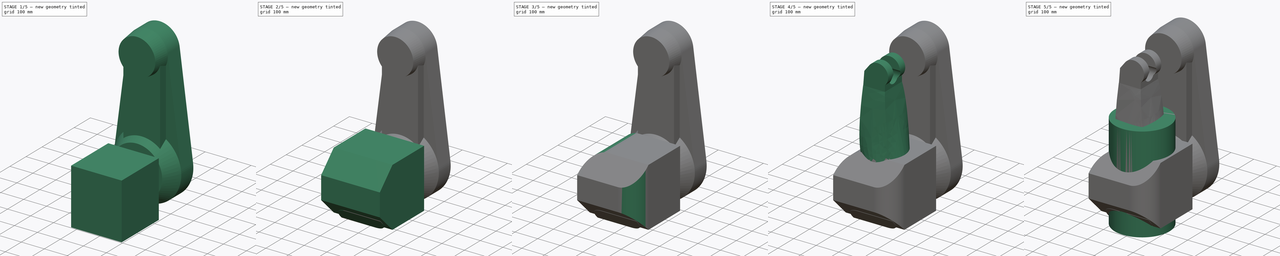
[diagram: build sequence overview — one tinted view per stage of 5, left to right]
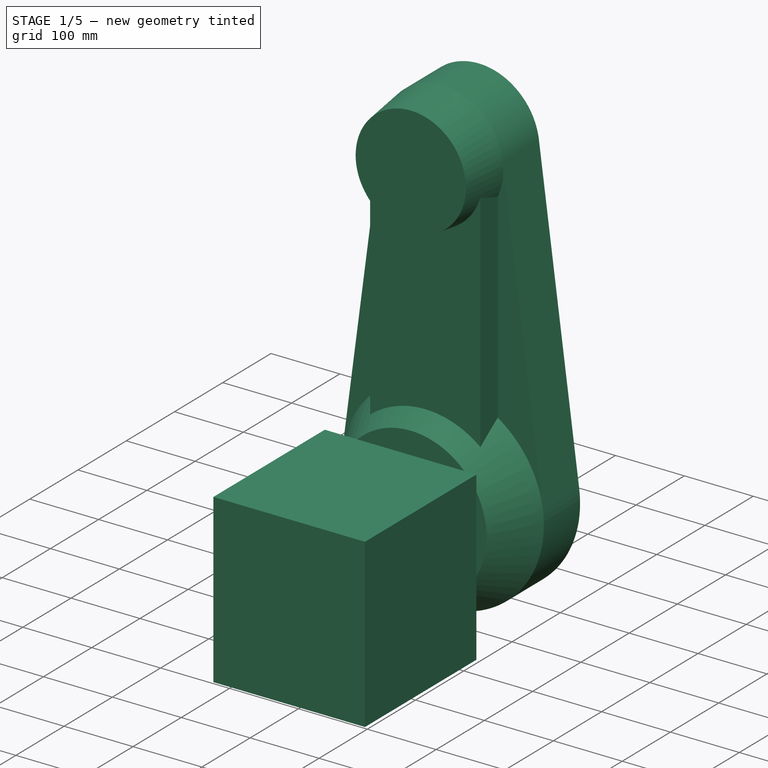
[diagram: stage 1 of 5 — iso view after this stage's code; geometry added in this stage tinted green]
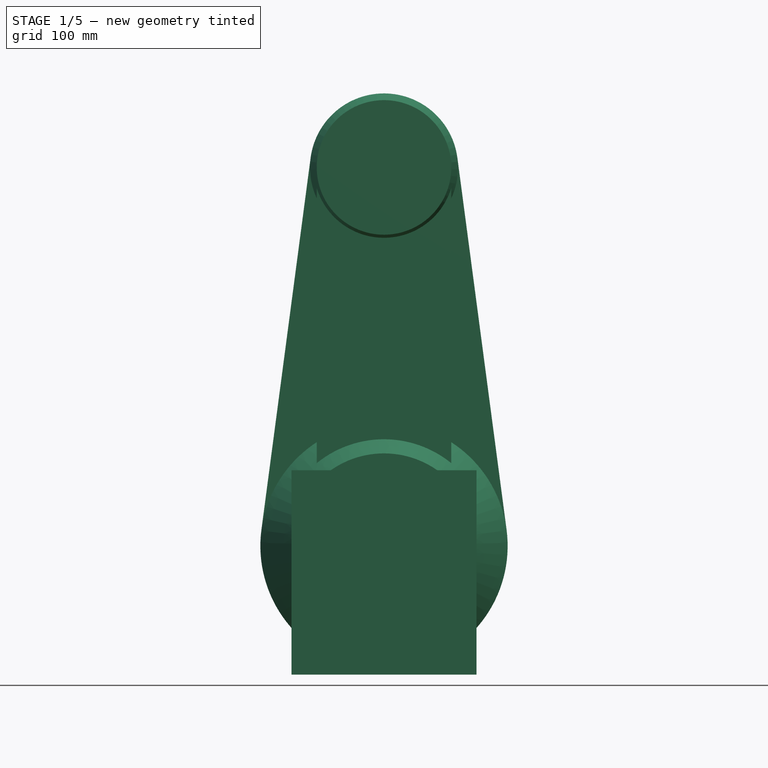
[diagram: stage 1 of 5 — front view after this stage's code; geometry added in this stage tinted green]
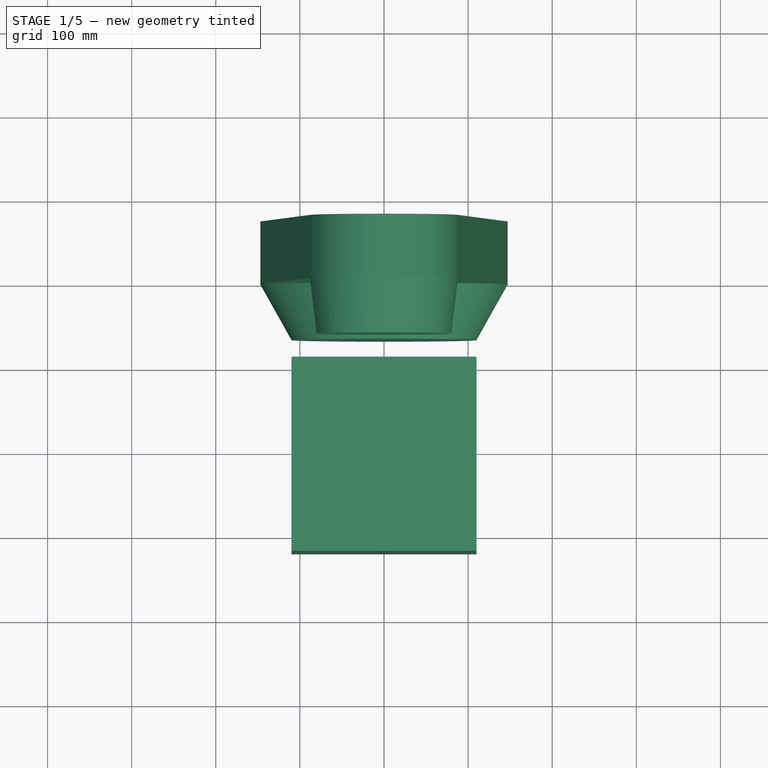
[diagram: stage 1 of 5 — top view after this stage's code; geometry added in this stage tinted green]
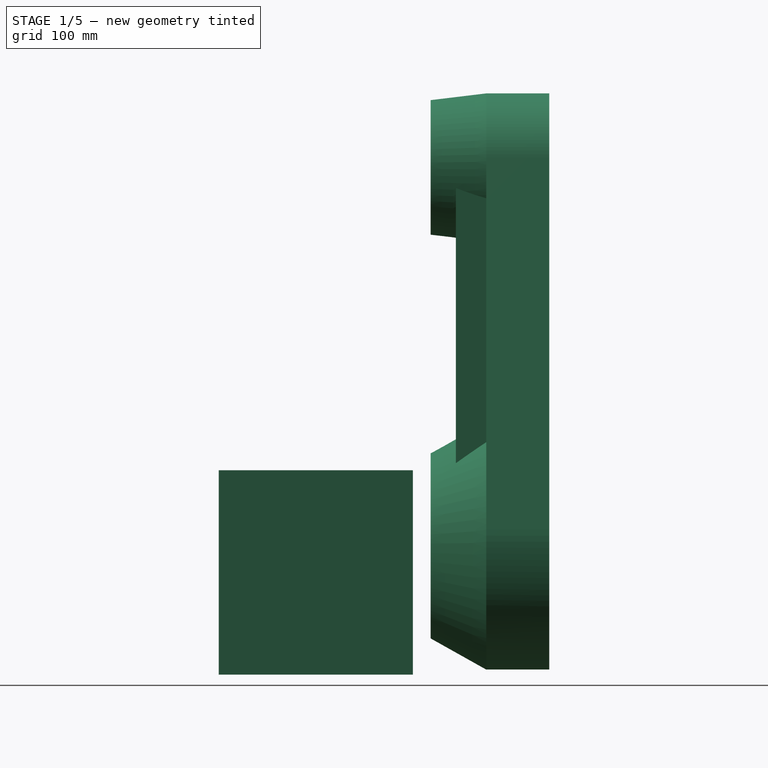
[diagram: stage 1 of 5 — right view after this stage's code; geometry added in this stage tinted green]
FCSTD DOCUMENT  (FreeCAD 1.0R38806 (Git))
Label: StaubliRX90
License: All rights reserved
LicenseURL: http://en.wikipedia.org/wiki/All_rights_reserved
objects: Sketcher::SketchObject×22, PartDesign::Pad×13, PartDesign::Body×7, PartDesign::Pocket×3, PartDesign::Chamfer×3, PartDesign::Plane×2, PartDesign::Fillet×2, PartDesign::Revolution×2, PartDesign::AdditiveLoft×1
note: 125 computed .brp shape members not serialized (recipe doc carries the construction recipe); baked Part::Feature solids carry a one-line shape summary decoded from their .brp

FEATURE [Sketcher::SketchObject] Sketch003
  ArcFitTolerance = 1e-06
  AttachmentOffset = pos=(0,0,-133) rot=(0,0,1;0rad)
  AttachmentSupport = -> [XZ_Plane001]
  FullyConstrained = true
  MakeInternals = false
  MapMode = 5
  Placement = pos=(0,133,-2.95e-14) rot=(1,0,0;1.5708rad)
  expr: .AttachmentOffset.Base.z = -424 + 150 + 141
  sketch-geometry (1):
    g0: Circle CenterX=0 CenterY=0 CenterZ=0 NormalX=0 NormalY=0 NormalZ=1 AngleXU=0 Radius=110
  constraints (2):
    c: Diameter(g0) = 220
    c: Coincident(g-1,g0)
FEATURE [Sketcher::SketchObject] Sketch004
  ArcFitTolerance = 1e-06
  AttachmentOffset = pos=(0,0,-274) rot=(0,0,1;0rad)
  AttachmentSupport = -> [XZ_Plane002]
  FullyConstrained = true
  MakeInternals = false
  MapMode = 5
  Placement = pos=(0,274,-6.08e-14) rot=(1,0,0;1.5708rad)
  expr: Constraints[6] = 294 mm / 2
  expr: Constraints[7] = 176 mm / 2
  sketch-geometry (4):
    g0: ArcOfCircle CenterX=0 CenterY=0 CenterZ=0 NormalX=0 NormalY=0 NormalZ=1 AngleXU=0 Radius=147 StartAngle=3.0101 EndAngle=6.41467
    g1: ArcOfCircle CenterX=0 CenterY=450 CenterZ=0 NormalX=0 NormalY=0 NormalZ=1 AngleXU=0 Radius=88 StartAngle=0.13149 EndAngle=3.0101
    g2: LineSegment StartX=-145.731 StartY=19.2733 StartZ=0 EndX=-87.2404 EndY=461.538 EndZ=0
    g3: LineSegment StartX=145.731 StartY=19.2733 StartZ=0 EndX=87.2404 EndY=461.538 EndZ=0
  constraints (9):
    c: Tangent(g0,g2) = 1.5708
    c: Tangent(g0,g3) = -1.5708
    c: Tangent(g1,g2) = 1.5708
    c: Tangent(g1,g3) = -1.5708
    c: Coincident(g0,g-1)
    c: Vertical(g0,g1)
    c: Radius(g0) = 147
    c: Radius(g1) = 88
    c: DistanceY(g0,g1) = 450
FEATURE [Sketcher::SketchObject] Sketch005
  ArcFitTolerance = 1e-06
  AttachmentOffset = pos=(0,0,-133) rot=(0,0,1;0rad)
  AttachmentSupport = -> [XZ_Plane003]
  FullyConstrained = true
  MakeInternals = false
  MapMode = 5
  Placement = pos=(0,133,-2.95e-14) rot=(1,0,0;1.5708rad)
  sketch-geometry (1):
    g0: Circle CenterX=0 CenterY=0 CenterZ=0 NormalX=0 NormalY=0 NormalZ=1 AngleXU=0 Radius=80
  constraints (2):
    c: Coincident(g0,g-1)
    c: Diameter(g0) = 160
FEATURE [Sketcher::SketchObject] Sketch006
  ArcFitTolerance = 1e-06
  AttachmentSupport = -> [XY_Plane003]
  FullyConstrained = false
  MakeInternals = false
  MapMode = 5
  sketch-geometry (5):
    g0: LineSegment StartX=-110 StartY=111.843 StartZ=0 EndX=-110 EndY=-119 EndZ=0
    g1: LineSegment StartX=-110 StartY=-119 StartZ=0 EndX=110 EndY=-119 EndZ=0
    g2: LineSegment StartX=110 StartY=-119 StartZ=0 EndX=110 EndY=111.843 EndZ=0
    g3: LineSegment StartX=110 StartY=111.843 StartZ=0 EndX=-110 EndY=111.843 EndZ=0
    g4: GeomPoint X=0 Y=-119 Z=0
  constraints (12):
    c: Coincident(g0,g1)
    c: Coincident(g1,g2)
    c: Coincident(g2,g3)
    c: Coincident(g3,g0)
    c: Vertical(g0)
    c: Vertical(g2)
    c: Horizontal(g1)
    c: Horizontal(g3)
    c: Symmetric(g1,g1,g4)
    c: Vertical(g4,g-1)
    c: DistanceX(g1,g1) = 220
    c: Distance(g-1,g1) = 119
FEATURE [PartDesign::Pad] Pad006
  Direction = (0,0,1)
  Length = 90
  Length2 = 153
  Profile = -> Sketch006
  ReferenceAxis = -> Sketch006 [N_Axis]
  Suppressed = false
  Type = 4
FEATURE [PartDesign::Body] Body003  label="Elbow"
  AllowCompound = false
  Group = -> [Pad006,Sketch005,Chamfer001,Chamfer002,Fillet001,Pad005,Sketch006,Sketch007,Pad007]
  Origin = -> Origin003
  Tip = -> Pad007
FEATURE [PartDesign::Pad] Pad012
  Direction = (0,-1,2e-16)
  Length = 75
  Length2 = 10
  Placement = pos=(0,0,0) rot=(1,0,0;1.5708rad)
  Profile = -> Sketch004
  ReferenceAxis = -> Sketch004 [N_Axis]
  Suppressed = false
  Type = 0
FEATURE [Sketcher::SketchObject] Sketch019
  ArcFitTolerance = 1e-06
  AttachmentOffset = pos=(0,0,-199) rot=(0,0,1;0rad)
  AttachmentSupport = -> [XZ_Plane002]
  FullyConstrained = true
  MakeInternals = false
  MapMode = 5
  Placement = pos=(0,199,-4.42e-14) rot=(1,0,0;1.5708rad)
  sketch-geometry (4):
    g0: ArcOfCircle CenterX=0 CenterY=0 CenterZ=0 NormalX=0 NormalY=0 NormalZ=1 AngleXU=0 Radius=80 StartAngle=3.14159 EndAngle=6.28319
    g1: ArcOfCircle CenterX=-7e-15 CenterY=450 CenterZ=0 NormalX=0 NormalY=0 NormalZ=1 AngleXU=0 Radius=80 StartAngle=3e-16 EndAngle=3.14159
    g2: LineSegment StartX=-80 StartY=-2.57e-14 StartZ=0 EndX=-80 EndY=450 EndZ=0
    g3: LineSegment StartX=80 StartY=-1.96e-14 StartZ=0 EndX=80 EndY=450 EndZ=0
  constraints (9):
    c: Tangent(g0,g2) = 1.5708
    c: Tangent(g0,g3) = -1.5708
    c: Tangent(g1,g2) = 1.5708
    c: Tangent(g1,g3) = -1.5708
    c: Equal(g0,g1)
    c: Coincident(g0,g-1)
    c: Vertical(g2)
    c: DistanceY(g0,g1) = 450
    c: Radius(g1) = 80
FEATURE [PartDesign::Pad] Pad013
  BaseFeature = -> Pad012
  Direction = (0,-1,2e-16)
  Length = 36
  Length2 = 10
  Placement = pos=(0,0,0) rot=(1,0,0;1.5708rad)
  Profile = -> Sketch019
  ReferenceAxis = -> Sketch019 [N_Axis]
  Suppressed = false
  Type = 0
FEATURE [Sketcher::SketchObject] Sketch020
  ArcFitTolerance = 1e-06
  AttachmentSupport = -> [YZ_Plane002]
  FullyConstrained = true
  MakeInternals = false
  MapMode = 5
  Placement = pos=(0,0,0) rot=(0.57735,0.57735,0.57735;2.0944rad)
  expr: Constraints[10] = 176 / 2
  expr: Constraints[11] = 160 / 2
  sketch-geometry (4):
    g0: LineSegment StartX=133 StartY=450 StartZ=0 EndX=199 EndY=450 EndZ=0
    g1: LineSegment StartX=199 StartY=450 StartZ=0 EndX=199 EndY=538 EndZ=0
    g2: LineSegment StartX=199 StartY=538 StartZ=0 EndX=133 EndY=530 EndZ=0
    g3: LineSegment StartX=133 StartY=450 StartZ=0 EndX=133 EndY=530 EndZ=0
  constraints (12):
    c: Horizontal(g0)
    c: Coincident(g1,g0)
    c: Vertical(g1)
    c: Coincident(g2,g1)
    c: Coincident(g3,g0)
    c: Coincident(g3,g2)
    c: DistanceY(g-1,g0) = 450
    c: Vertical(g3)
    c: Distance(g-1,g3) = 133
    c: Distance(g0,g0) = 66
    c: DistanceY(g1,g1) = 88
    c: DistanceY(g3,g3) = 80
FEATURE [PartDesign::Revolution] Revolution
  Angle = 360
  Angle2 = 60
  Axis = (0,1,0)
  Base = (0,133,450)
  BaseFeature = -> Pad013
  Placement = pos=(0,0,0) rot=(1,0,0;1.5708rad)
  Profile = -> Sketch020
  ReferenceAxis = -> Sketch020 [Edge1]
  Reversed = true
  Suppressed = false
  Type = 0
FEATURE [Sketcher::SketchObject] Sketch021
  ArcFitTolerance = 1e-06
  AttachmentSupport = -> [YZ_Plane002]
  ExternalGeometry = -> [Sketch020]
  FullyConstrained = true
  MakeInternals = false
  MapMode = 5
  Placement = pos=(0,0,0) rot=(0.57735,0.57735,0.57735;2.0944rad)
  expr: Constraints[11] = 294 / 2
  sketch-geometry (4):
    g0: LineSegment StartX=199 StartY=0 StartZ=0 EndX=133 EndY=0 EndZ=0
    g1: LineSegment StartX=133 StartY=0 StartZ=0 EndX=133 EndY=-110 EndZ=0
    g2: LineSegment StartX=133 StartY=-110 StartZ=0 EndX=199 EndY=-147 EndZ=0
    g3: LineSegment StartX=199 StartY=-147 StartZ=0 EndX=199 EndY=0 EndZ=0
  constraints (12):
    c: PointOnObject(g0,g-1)
    c: PointOnObject(g0,g-1)
    c: Coincident(g1,g0)
    c: Vertical(g1)
    c: Coincident(g2,g1)
    c: Coincident(g3,g2)
    c: Coincident(g3,g0)
    c: Vertical(g3)
    c: Vertical(g0,g-3)
    c: Vertical(g0,g-3)
    c: DistanceY(g1,g1) = 110
    c: DistanceY(g3,g3) = 147
FEATURE [PartDesign::Revolution] Revolution001
  Angle = 360
  Angle2 = 60
  Axis = (0,-1,0)
  Base = (0,199,0)
  BaseFeature = -> Revolution
  Placement = pos=(0,0,0) rot=(1,0,0;1.5708rad)
  Profile = -> Sketch021
  ReferenceAxis = -> Sketch021 [Edge1]
  Reversed = true
  Suppressed = false
  Type = 0
FEATURE [PartDesign::Body] Body002  label="Arm"
  AllowCompound = false
  Group = -> [Sketch004,Pad012,Sketch019,Pad013,Sketch020,Revolution,Sketch021,Revolution001]
  Origin = -> Origin002
  Tip = -> Revolution001
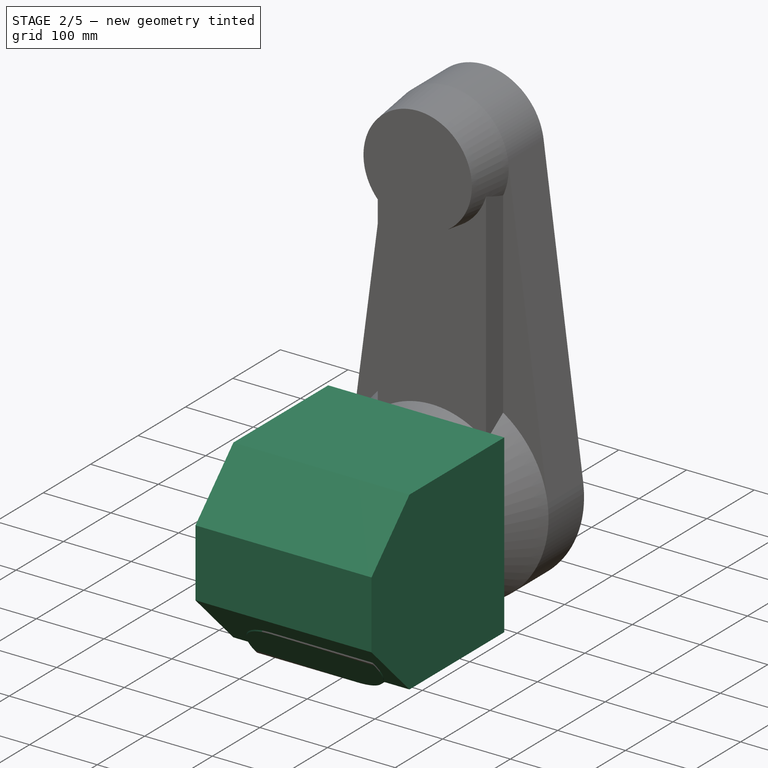
[diagram: stage 2 of 5 — iso view after this stage's code; geometry added in this stage tinted green]
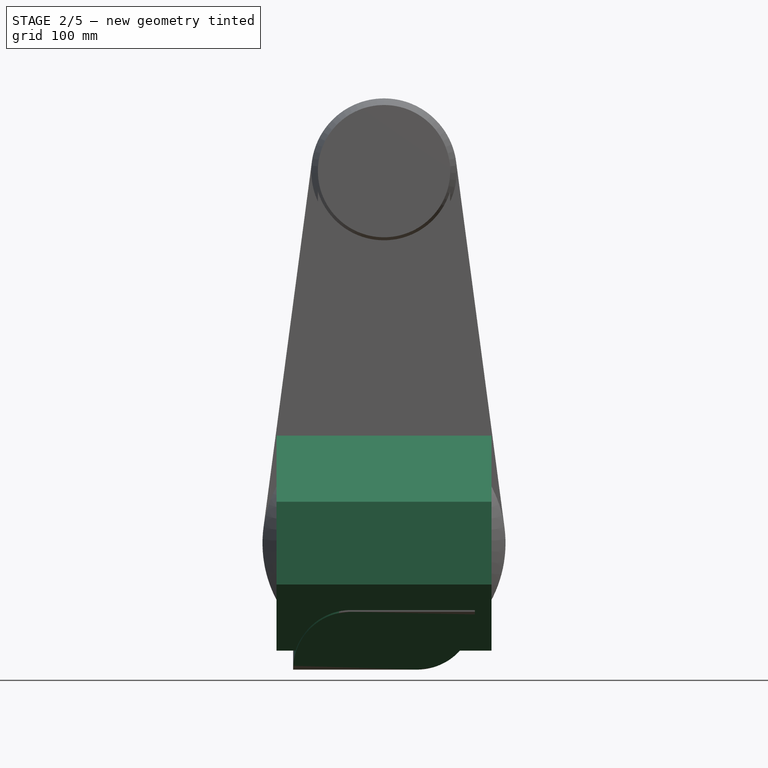
[diagram: stage 2 of 5 — front view after this stage's code; geometry added in this stage tinted green]
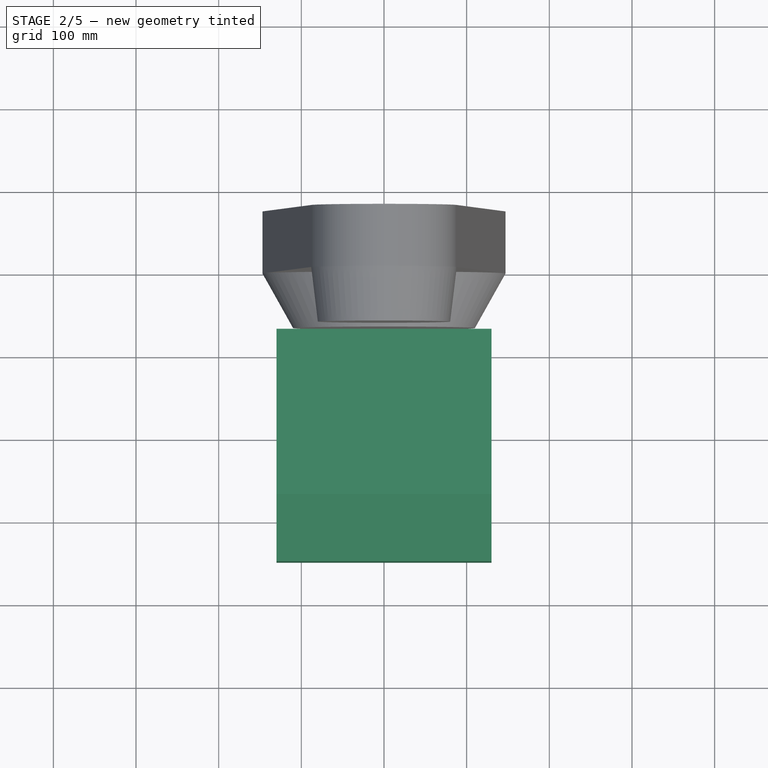
[diagram: stage 2 of 5 — top view after this stage's code; geometry added in this stage tinted green]
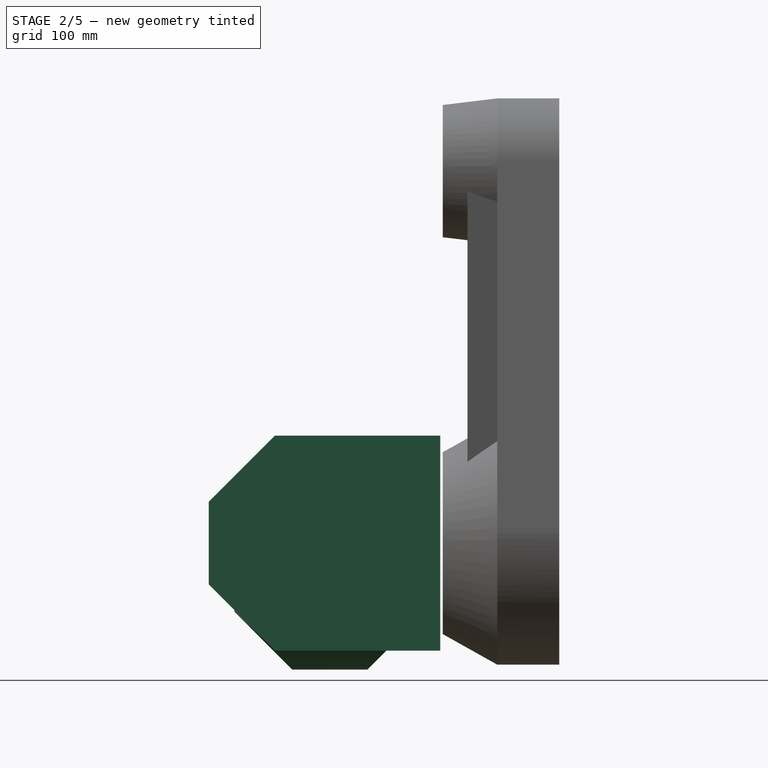
[diagram: stage 2 of 5 — right view after this stage's code; geometry added in this stage tinted green]
FEATURE [PartDesign::Body] Body  label="Base"
  AllowCompound = false
  Group = -> [Sketch,Pad]
  Origin = -> Origin
  Tip = -> Pad
FEATURE [Sketcher::SketchObject] Sketch001
  ArcFitTolerance = 1e-06
  AttachmentSupport = -> [XY_Plane001]
  FullyConstrained = true
  MakeInternals = false
  MapMode = 5
  sketch-geometry (1):
    g0: Circle CenterX=0 CenterY=0 CenterZ=0 NormalX=0 NormalY=0 NormalZ=1 AngleXU=0 Radius=120
  constraints (2):
    c: Coincident(g0,g-1)
    c: Diameter(g0) = 240
FEATURE [Sketcher::SketchObject] Sketch002
  ArcFitTolerance = 1e-06
  AttachmentSupport = -> [XY_Plane001]
  FullyConstrained = true
  MakeInternals = false
  MapMode = 5
  sketch-geometry (5):
    g0: LineSegment StartX=130 StartY=130 StartZ=0 EndX=-130 EndY=130 EndZ=0
    g1: LineSegment StartX=-130 StartY=130 StartZ=0 EndX=-130 EndY=-150 EndZ=0
    g2: LineSegment StartX=-130 StartY=-150 StartZ=0 EndX=130 EndY=-150 EndZ=0
    g3: LineSegment StartX=130 StartY=-150 StartZ=0 EndX=130 EndY=130 EndZ=0
    g4: GeomPoint [constr] X=0 Y=0 Z=0
  constraints (13):
    c: Coincident(g0,g1)
    c: Coincident(g1,g2)
    c: Coincident(g2,g3)
    c: Coincident(g3,g0)
    c: Horizontal(g0)
    c: Horizontal(g2)
    c: Vertical(g1)
    c: Vertical(g3)
    c: Coincident(g4,g-1)
    c: Distance(g4,g3) = 130
    c: Distance(g4,g0) = 130
    c: Distance(g4,g2) = 150
    c: Distance(g1,g-2) = 130
FEATURE [PartDesign::Pad] Pad002
  Direction = (0,0,1)
  Length = 130
  Length2 = 130
  Profile = -> Sketch002
  ReferenceAxis = -> Sketch002 [N_Axis]
  Suppressed = false
  Type = 4
FEATURE [PartDesign::Body] Body006  label="Flange"
  AllowCompound = false
  Group = -> [Sketch017,Pad011,Sketch018,Pocket002]
  Origin = -> Origin006
  Tip = -> Pocket002
FEATURE [PartDesign::Chamfer] Chamfer
  Angle = 45
  Base = -> Pad002 [Edge10,Edge9]
  BaseFeature = -> Pad002
  ChamferType = 0
  FlipDirection = false
  Size = 80
  Size2 = 1
  SupportTransform = false
  Suppressed = false
  UseAllEdges = false
FEATURE [PartDesign::Body] Body001  label="Shoulder"
  AllowCompound = false
  Group = -> [Pad002,Sketch001,Chamfer,Fillet,Pad001,Sketch002,Sketch003,Pad003]
  Origin = -> Origin001
  Tip = -> Pad003
FEATURE [PartDesign::Chamfer] Chamfer001
  Angle = 45
  Base = -> Pad006 [Edge6,Edge11]
  BaseFeature = -> Pad006
  ChamferType = 0
  FlipDirection = false
  Size = 70
  Size2 = 1
  SupportTransform = false
  Suppressed = false
  UseAllEdges = false
FEATURE [PartDesign::Chamfer] Chamfer002
  Angle = 30
  Base = -> Chamfer001 [Edge12]
  BaseFeature = -> Chamfer001
  ChamferType = 2
  FlipDirection = false
  Size = 90
  Size2 = 1
  SupportTransform = false
  Suppressed = false
  UseAllEdges = false
FEATURE [PartDesign::Fillet] Fillet001
  Base = -> Chamfer002 [Edge4,Edge21]
  BaseFeature = -> Chamfer002
  Radius = 70
  SupportTransform = false
  Suppressed = false
  UseAllEdges = false
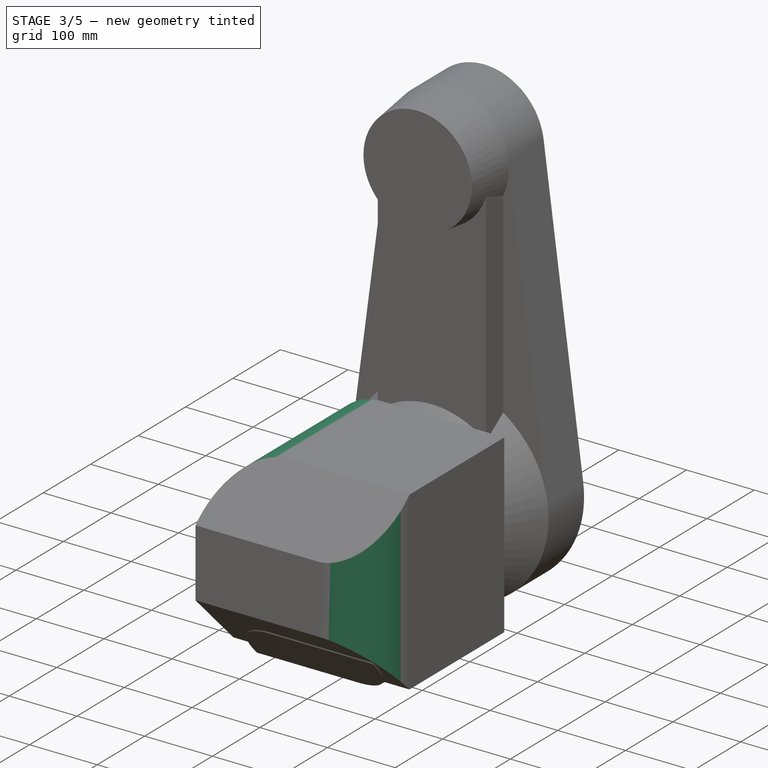
[diagram: stage 3 of 5 — iso view after this stage's code; geometry added in this stage tinted green]
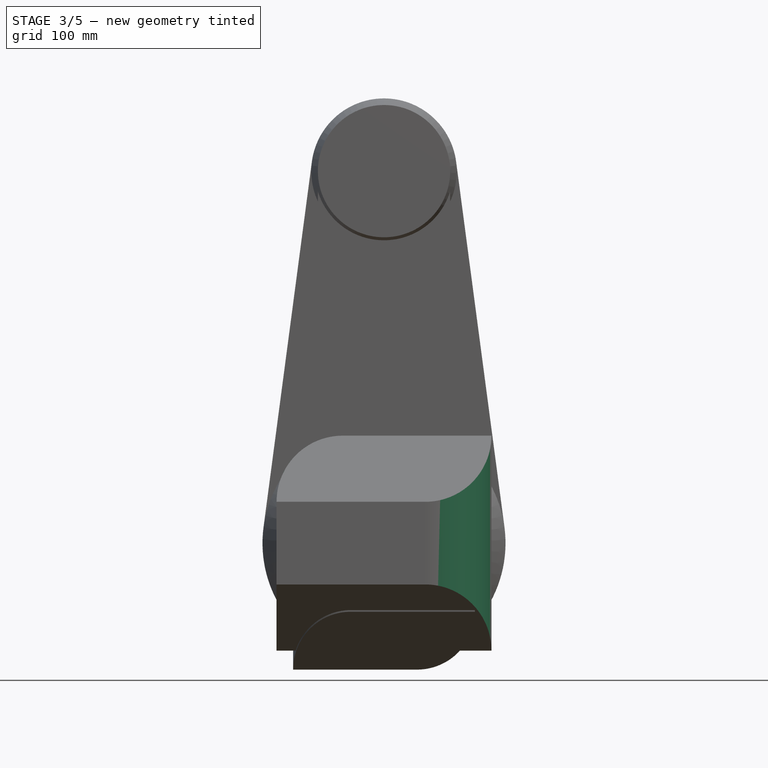
[diagram: stage 3 of 5 — front view after this stage's code; geometry added in this stage tinted green]
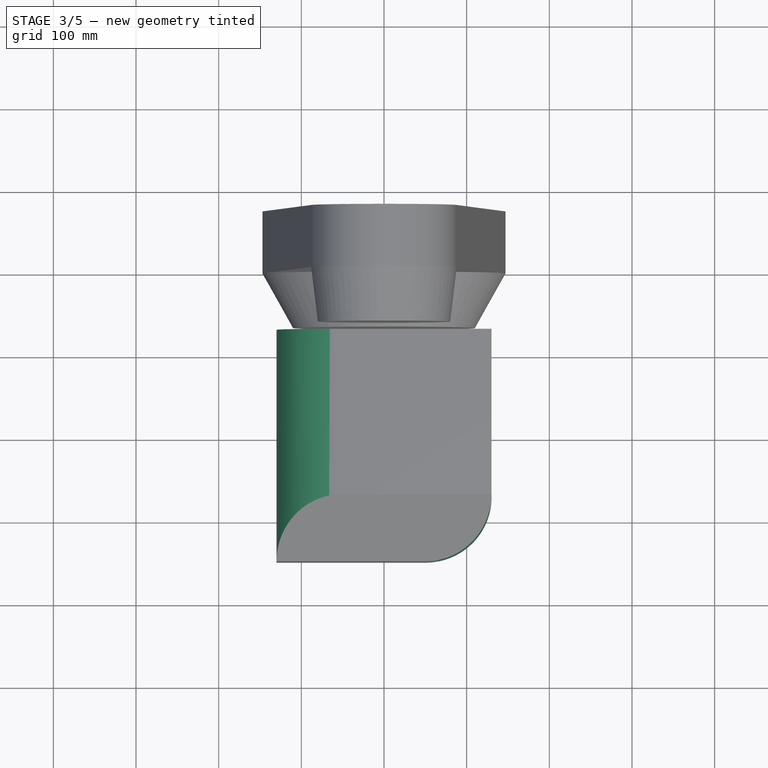
[diagram: stage 3 of 5 — top view after this stage's code; geometry added in this stage tinted green]
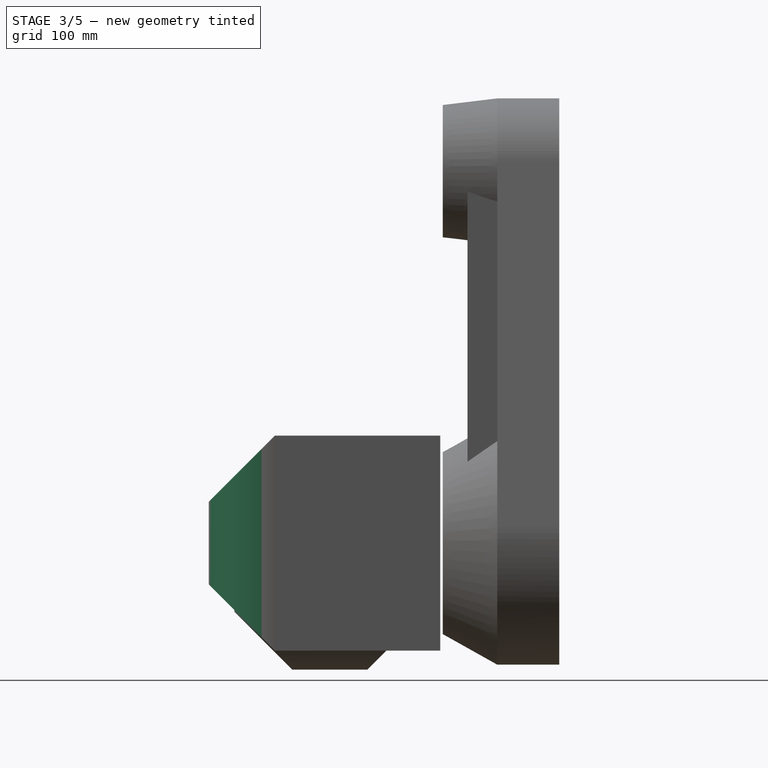
[diagram: stage 3 of 5 — right view after this stage's code; geometry added in this stage tinted green]
FEATURE [PartDesign::Body] Body004  label="Forearm"
  AllowCompound = false
  Group = -> [Sketch008,Sketch011,DatumPlane001,Sketch012,Sketch010,DatumPlane,Sketch009,AdditiveLoft,Pad008,Sketch013,Pocket]
  Origin = -> Origin004
  Tip = -> Pocket
FEATURE [Sketcher::SketchObject] Sketch014
  ArcFitTolerance = 1e-06
  AttachmentSupport = -> [XZ_Plane005]
  FullyConstrained = true
  MakeInternals = false
  MapMode = 5
  Placement = pos=(0,0,0) rot=(1,0,0;1.5708rad)
  sketch-geometry (1):
    g0: Circle CenterX=0 CenterY=0 CenterZ=0 NormalX=0 NormalY=0 NormalZ=1 AngleXU=0 Radius=35
  constraints (2):
    c: Coincident(g0,g-1)
    c: Diameter(g0) = 70
FEATURE [PartDesign::Pad] Pad009
  Direction = (0,-1,2e-16)
  Length = 50
  Length2 = 10
  Midplane = true
  Placement = pos=(0,0,0) rot=(1,0,0;1.5708rad)
  Profile = -> Sketch014
  ReferenceAxis = -> Sketch014 [N_Axis]
  Suppressed = false
  Type = 0
FEATURE [PartDesign::Body] Body005  label="Wrist"
  AllowCompound = false
  Group = -> [Sketch014,Pad009,Sketch015,Pad010,Sketch016,Pocket001]
  Origin = -> Origin005
  Tip = -> Pocket001
FEATURE [Sketcher::SketchObject] Sketch017
  ArcFitTolerance = 1e-06
  AttachmentSupport = -> [XY_Plane006]
  FullyConstrained = true
  MakeInternals = false
  MapMode = 5
  sketch-geometry (1):
    g0: Circle CenterX=0 CenterY=0 CenterZ=0 NormalX=0 NormalY=0 NormalZ=1 AngleXU=0 Radius=25
  constraints (2):
    c: Coincident(g0,g-1)
    c: Diameter(g0) = 50
FEATURE [PartDesign::Pad] Pad011
  Direction = (0,0,1)
  Length = 11
  Length2 = 10
  Profile = -> Sketch017
  ReferenceAxis = -> Sketch017 [N_Axis]
  Reversed = true
  Suppressed = false
  Type = 0
FEATURE [Sketcher::SketchObject] Sketch018
  ArcFitTolerance = 1e-06
  AttachmentSupport = -> [XY_Plane006]
  FullyConstrained = true
  MakeInternals = false
  MapMode = 5
  sketch-geometry (11):
    g0: Circle [constr] CenterX=0 CenterY=0 CenterZ=0 NormalX=0 NormalY=0 NormalZ=1 AngleXU=0 Radius=20
    g1: LineSegment [constr] StartX=-14.1421 StartY=14.1421 StartZ=0 EndX=-14.1421 EndY=-14.1421 EndZ=0
    g2: LineSegment [constr] StartX=-14.1421 StartY=-14.1421 StartZ=0 EndX=14.1421 EndY=-14.1421 EndZ=0
    g3: LineSegment [constr] StartX=14.1421 StartY=-14.1421 StartZ=0 EndX=14.1421 EndY=14.1421 EndZ=0
    g4: LineSegment [constr] StartX=14.1421 StartY=14.1421 StartZ=0 EndX=-14.1421 EndY=14.1421 EndZ=0
    g5: Circle CenterX=-14.1421 CenterY=14.1421 CenterZ=0 NormalX=0 NormalY=0 NormalZ=1 AngleXU=0 Radius=3
    g6: Circle CenterX=14.1421 CenterY=14.1421 CenterZ=0 NormalX=0 NormalY=0 NormalZ=1 AngleXU=0 Radius=3
    g7: Circle CenterX=14.1421 CenterY=-14.1421 CenterZ=0 NormalX=0 NormalY=0 NormalZ=1 AngleXU=0 Radius=3
    g8: Circle CenterX=-14.1421 CenterY=-14.1421 CenterZ=0 NormalX=0 NormalY=0 NormalZ=1 AngleXU=0 Radius=3
    g9: Circle CenterX=-20 CenterY=0 CenterZ=0 NormalX=0 NormalY=0 NormalZ=1 AngleXU=0 Radius=3
    g10: Circle CenterX=0 CenterY=0 CenterZ=0 NormalX=0 NormalY=0 NormalZ=1 AngleXU=0 Radius=12.5
  constraints (27):
    c: Coincident(g0,g-1)
    c: Diameter(g0) = 40
    c: Coincident(g1,g2)
    c: Coincident(g2,g3)
    c: Coincident(g3,g4)
    c: Coincident(g4,g1)
    c: Vertical(g1)
    c: Vertical(g3)
    c: Horizontal(g2)
    c: Horizontal(g4)
    c: PointOnObject(g1,g0)
    c: PointOnObject(g2,g0)
    c: Equal(g4,g1)
    c: Coincident(g5,g1)
    c: Coincident(g6,g3)
    c: Coincident(g7,g2)
    c: Coincident(g8,g1)
    c: PointOnObject(g3,g0)
    c: PointOnObject(g9,g0)
    c: Equal(g8,g5)
    c: Equal(g8,g6)
    c: Equal(g8,g7)
    c: Diameter(g8) = 6
    c: Diameter(g9) = 6
    c: Coincident(g10,g0)
    c: Diameter(g10) = 25
    c: Horizontal(g0,g9)
FEATURE [PartDesign::Pocket] Pocket002
  BaseFeature = -> Pad011
  Direction = (0,0,-1)
  Length = 8
  Length2 = 5
  Profile = -> Sketch018
  ReferenceAxis = -> Sketch018 [N_Axis]
  Suppressed = false
  Type = 0
FEATURE [PartDesign::Fillet] Fillet
  Base = -> Chamfer [Edge9,Edge5]
  BaseFeature = -> Chamfer
  Radius = 80
  SupportTransform = false
  Suppressed = false
  UseAllEdges = false
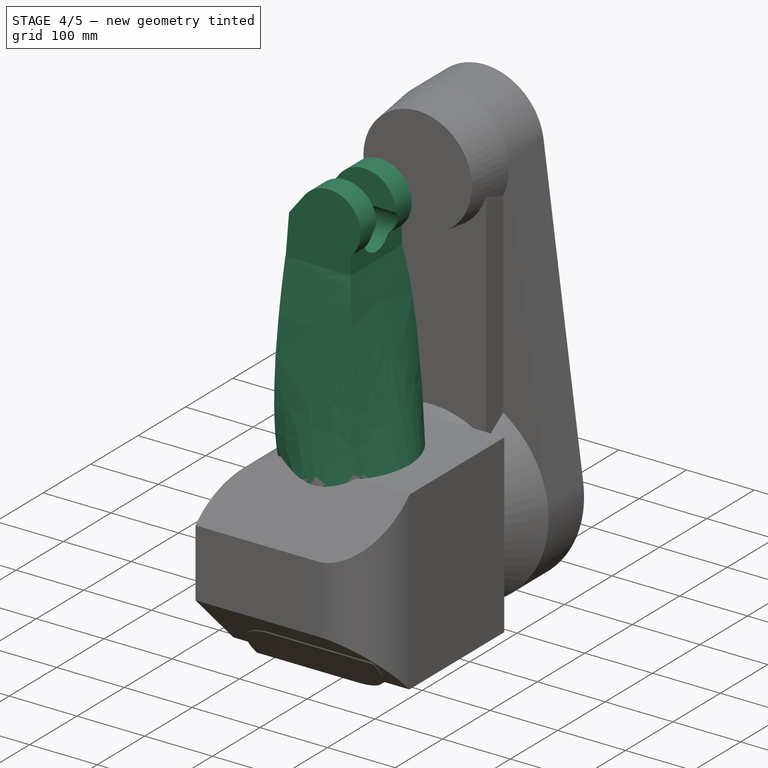
[diagram: stage 4 of 5 — iso view after this stage's code; geometry added in this stage tinted green]
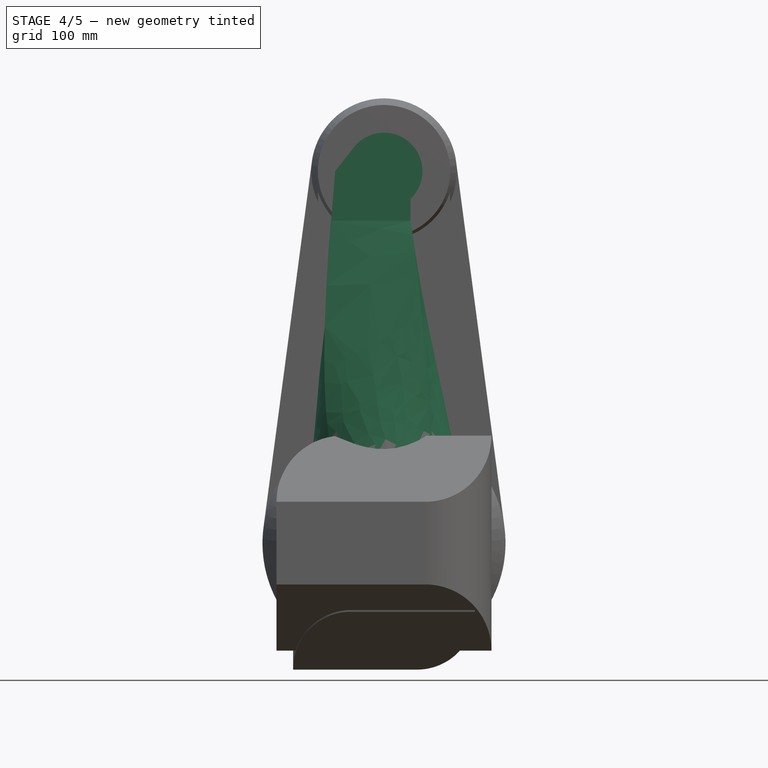
[diagram: stage 4 of 5 — front view after this stage's code; geometry added in this stage tinted green]
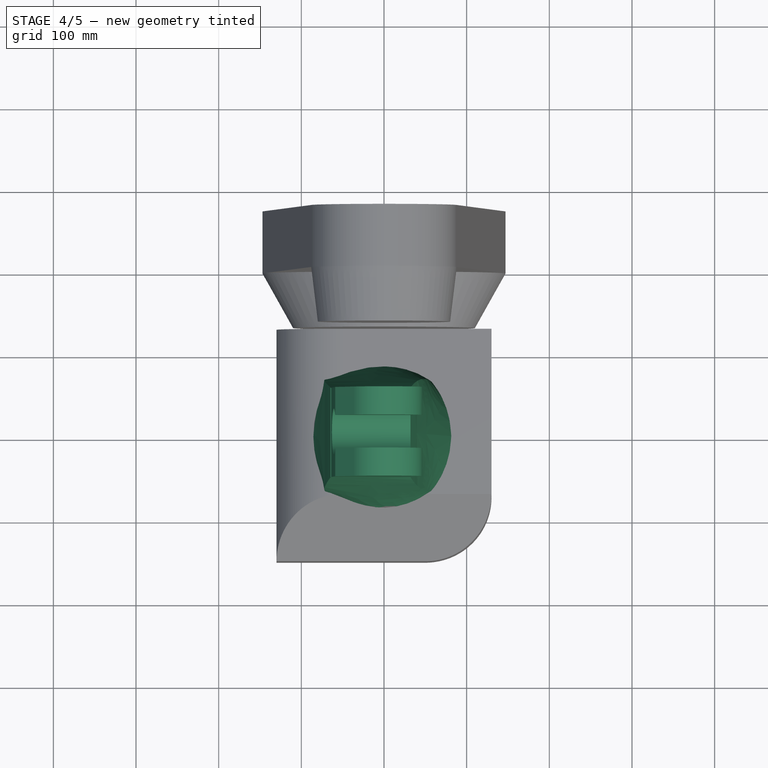
[diagram: stage 4 of 5 — top view after this stage's code; geometry added in this stage tinted green]
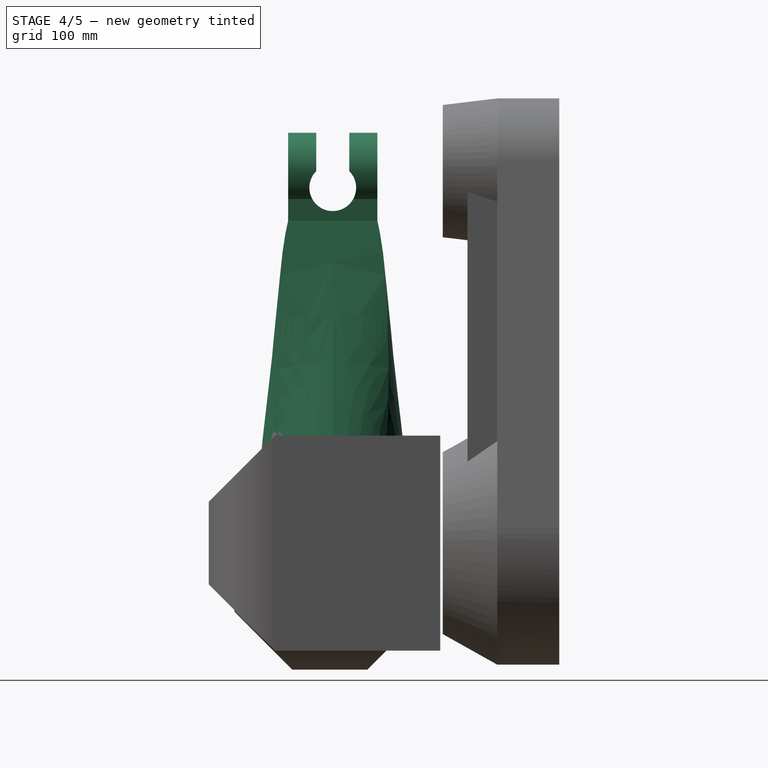
[diagram: stage 4 of 5 — right view after this stage's code; geometry added in this stage tinted green]
FEATURE [Sketcher::SketchObject] Sketch007
  ArcFitTolerance = 1e-06
  AttachmentOffset = pos=(0,0,98) rot=(0,0,1;0rad)
  AttachmentSupport = -> [XY_Plane003]
  FullyConstrained = true
  MakeInternals = false
  MapMode = 5
  Placement = pos=(0,0,98) rot=(0,0,1;0rad)
  sketch-geometry (1):
    g0: Circle CenterX=0 CenterY=0 CenterZ=0 NormalX=0 NormalY=0 NormalZ=1 AngleXU=0 Radius=88
  constraints (2):
    c: Coincident(g0,g-1)
    c: Diameter(g0) = 176
FEATURE [Sketcher::SketchObject] Sketch008  label="BaseRound"
  ArcFitTolerance = 1e-06
  AttachmentOffset = pos=(0,0,98) rot=(0,0,1;0rad)
  AttachmentSupport = -> [XY_Plane004]
  FullyConstrained = true
  MakeInternals = false
  MapMode = 5
  Placement = pos=(0,0,98) rot=(0,0,1;0rad)
  sketch-geometry (1):
    g0: Circle CenterX=0 CenterY=0 CenterZ=0 NormalX=0 NormalY=0 NormalZ=1 AngleXU=0 Radius=88
  constraints (2):
    c: Coincident(g0,g-1)
    c: Diameter(g0) = 176
FEATURE [PartDesign::Plane] DatumPlane  label="Slant"
  AttachmentOffset = pos=(0,0,350) rot=(0,-1,0;0.314159rad)
  AttachmentSupport = -> [XY_Plane004]
  Length = 375.866
  MapMode = 5
  Placement = pos=(0,0,350) rot=(0,-1,0;0.314159rad)
  ResizeMode = 0
  Width = 222.907
FEATURE [Sketcher::SketchObject] Sketch009  label="SlantSegment"
  ArcFitTolerance = 1e-06
  AttachmentSupport = -> [DatumPlane]
  FullyConstrained = true
  MakeInternals = false
  MapMode = 5
  Placement = pos=(0,0,350) rot=(0,-1,0;0.314159rad)
  sketch-geometry (5):
    g0: LineSegment StartX=37.859 StartY=59.3425 StartZ=0 EndX=-72.379 EndY=59.3425 EndZ=0
    g1: LineSegment StartX=-72.379 StartY=59.3425 StartZ=0 EndX=-72.379 EndY=-59.3425 EndZ=0
    g2: LineSegment StartX=-72.379 StartY=-59.3425 StartZ=0 EndX=37.859 EndY=-59.3425 EndZ=0
    g3: LineSegment StartX=37.859 StartY=-59.3425 StartZ=0 EndX=37.859 EndY=59.3425 EndZ=0
    g4: GeomPoint X=37.859 Y=0 Z=0
  constraints (13):
    c: Coincident(g0,g1)
    c: Coincident(g1,g2)
    c: Coincident(g2,g3)
    c: Coincident(g3,g0)
    c: Horizontal(g0)
    c: Horizontal(g2)
    c: Vertical(g1)
    c: Vertical(g3)
    c: Symmetric(g3,g3,g4)
    c: Horizontal(g4,g-1)
    c: DistanceY(g1,g1) = 118.685
    c: DistanceX(g-1,g4) = 37.859
    c: DistanceX(g2,g2) = 110.238
FEATURE [PartDesign::Plane] DatumPlane001  label="WristBase"
  AttachmentOffset = pos=(0,0,390) rot=(0,0,1;0rad)
  AttachmentSupport = -> [XY_Plane004]
  Length = 210.432
  MapMode = 5
  Placement = pos=(0,0,390) rot=(0,0,1;0rad)
  ResizeMode = 0
  Width = 210.034
FEATURE [Sketcher::SketchObject] Sketch011  label="BackProfile"
  ArcFitTolerance = 1e-06
  AttachmentSupport = -> [XZ_Plane004]
  ExternalGeometry = -> [Sketch008]
  FullyConstrained = true
  MakeInternals = false
  MapMode = 5
  Placement = pos=(0,0,0) rot=(1,0,0;1.5708rad)
  sketch-geometry (3):
    g0: GeomPoint X=0 Y=450 Z=0
    g1: LineSegment StartX=46.5 StartY=450 StartZ=0 EndX=-59.5 EndY=450 EndZ=0
    g2: LineSegment StartX=-59.5 StartY=450 StartZ=0 EndX=-88 EndY=98 EndZ=0
  constraints (8):
    c: Vertical(g0,g-1)
    c: DistanceY(g-1,g0) = 450
    c: Horizontal(g1)
    c: PointOnObject(g0,g1)
    c: DistanceX(g0,g1) = 46.5
    c: DistanceX(g1,g1) = 106
    c: Coincident(g2,g1)
    c: Coincident(g2,g-3)
FEATURE [Sketcher::SketchObject] Sketch012  label="WristFootSegment"
  ArcFitTolerance = 1e-06
  AttachmentSupport = -> [DatumPlane001]
  FullyConstrained = true
  MakeInternals = false
  MapMode = 5
  Placement = pos=(0,0,390) rot=(0,0,1;0rad)
  expr: Constraints[11] = 108 / 2
  sketch-geometry (6):
    g0: LineSegment StartX=-64.495 StartY=54 StartZ=0 EndX=-64.495 EndY=-54 EndZ=0
    g1: LineSegment StartX=-64.495 StartY=-54 StartZ=0 EndX=32 EndY=-54 EndZ=0
    g2: LineSegment StartX=32 StartY=-54 StartZ=0 EndX=32 EndY=54 EndZ=0
    g3: LineSegment StartX=32 StartY=54 StartZ=0 EndX=-64.495 EndY=54 EndZ=0
    g4: GeomPoint X=-64.495 Y=0 Z=0
    g5: GeomPoint X=-64.495 Y=0 Z=0
  constraints (15):
    c: Coincident(g0,g1)
    c: Coincident(g1,g2)
    c: Coincident(g2,g3)
    c: Coincident(g3,g0)
    c: Vertical(g0)
    c: Vertical(g2)
    c: Horizontal(g1)
    c: Horizontal(g3)
    c: PointOnObject(g4,g-1)
    c: Distance(g4,g-1) = 64.495
    c: PointOnObject(g4,g0)
    c: Distance(g-1,g1) = 54
    c: Distance(g-1,g2) = 32
    c: Symmetric(g0,g0,g5)
    c: Horizontal(g5,g-1)
FEATURE [Sketcher::SketchObject] Sketch010  label="WristProfile"
  ArcFitTolerance = 1e-06
  AttachmentSupport = -> [XZ_Plane004]
  ExternalGeometry = -> [Sketch008,Sketch012]
  FullyConstrained = true
  MakeInternals = false
  MapMode = 5
  Placement = pos=(0,0,0) rot=(1,0,0;1.5708rad)
  expr: Constraints[4] = 90 - 38
  sketch-geometry (7):
    g0: ArcOfCircle CenterX=0 CenterY=450 CenterZ=0 NormalX=0 NormalY=0 NormalZ=1 AngleXU=0 Radius=46.5 StartAngle=5.47136 EndAngle=8.76155
    g1: LineSegment StartX=-63.9509 StartY=390 StartZ=0 EndX=32 EndY=390 EndZ=0
    g2: LineSegment StartX=-36.6425 StartY=478.628 StartZ=0 EndX=-59.0093 EndY=450 EndZ=0
    g3: GeomPoint X=46.5 Y=450 Z=0
    g4: LineSegment StartX=32 StartY=390 StartZ=0 EndX=32 EndY=416.262 EndZ=0
    g5: LineSegment [constr] StartX=-88 StartY=98 StartZ=0 EndX=-59.0093 EndY=450 EndZ=0
    g6: LineSegment StartX=-59.0093 StartY=450 StartZ=0 EndX=-63.9509 EndY=390 EndZ=0
  constraints (19):
    c: Vertical(g0,g-1)
    c: DistanceY(g-1,g0) = 450
    c: Horizontal(g1)
    c: Tangent(g2,g0) = -1.5708
    c: Angle(g1,g2) = 0.907571
    c: PointOnObject(g3,g0)
    c: Horizontal(g3,g0)
    c: Horizontal(g2,g0)
    c: Radius(g0) = 46.5
    c: DistanceX(g2,g3) = 105.509
    c: Coincident(g4,g1)
    c: Coincident(g4,g0)
    c: Vertical(g4)
    c: Coincident(g5,g-3)
    c: Coincident(g5,g2)
    c: Coincident(g6,g2)
    c: Coincident(g1,g6)
    c: PointOnObject(g1,g5)
    c: Coincident(g-4,g1)
FEATURE [PartDesign::AdditiveLoft] AdditiveLoft
  Closed = false
  Profile = -> Sketch008
  Ruled = false
  Sections = -> [Sketch009,Sketch012]
  Suppressed = false
FEATURE [PartDesign::Pad] Pad008
  BaseFeature = -> AdditiveLoft
  Direction = (0,-1,2e-16)
  Length = 108
  Length2 = 10
  Midplane = true
  Profile = -> Sketch010
  ReferenceAxis = -> Sketch010 [N_Axis]
  Suppressed = false
  Type = 0
FEATURE [Sketcher::SketchObject] Sketch013
  ArcFitTolerance = 1e-06
  AttachmentSupport = -> [YZ_Plane004]
  ExternalGeometry = -> [Sketch010]
  FullyConstrained = true
  MakeInternals = false
  MapMode = 5
  Placement = pos=(0,0,0) rot=(0.57735,0.57735,0.57735;2.0944rad)
  sketch-geometry (4):
    g0: LineSegment StartX=-20 StartY=540 StartZ=0 EndX=20 EndY=540 EndZ=0
    g1: LineSegment StartX=20 StartY=540 StartZ=0 EndX=20 EndY=450 EndZ=0
    g2: LineSegment StartX=-20 StartY=540 StartZ=0 EndX=-20 EndY=450 EndZ=0
    g3: ArcOfCircle CenterX=0 CenterY=430 CenterZ=0 NormalX=0 NormalY=0 NormalZ=1 AngleXU=0 Radius=28.2843 StartAngle=2.35619 EndAngle=7.06858
  constraints (13):
    c: Horizontal(g0)
    c: Coincident(g1,g0)
    c: Vertical(g1)
    c: Coincident(g2,g0)
    c: Vertical(g2)
    c: Vertical(g-1,g3)
    c: Horizontal(g3,g3)
    c: Coincident(g2,g3)
    c: Coincident(g3,g1)
    c: DistanceX(g0,g0) = 40
    c: DistanceY(g-1,g3) = 430
    c: DistanceY(g2,g2) = 90
    c: Horizontal(g-3,g2)
FEATURE [PartDesign::Pocket] Pocket
  BaseFeature = -> Pad008
  Direction = (-1,0,0)
  Length = 5
  Length2 = 5
  Midplane = true
  Profile = -> Sketch013
  ReferenceAxis = -> Sketch013 [N_Axis]
  Suppressed = false
  Type = 1
FEATURE [Sketcher::SketchObject] Sketch015
  ArcFitTolerance = 1e-06
  AttachmentOffset = pos=(0,0,74) rot=(0,0,1;0rad)
  AttachmentSupport = -> [XY_Plane005]
  FullyConstrained = true
  MakeInternals = false
  MapMode = 5
  Placement = pos=(0,0,74) rot=(0,0,1;0rad)
  sketch-geometry (1):
    g0: Circle CenterX=0 CenterY=0 CenterZ=0 NormalX=0 NormalY=0 NormalZ=1 AngleXU=0 Radius=25
  constraints (2):
    c: Coincident(g0,g-1)
    c: Diameter(g0) = 50
FEATURE [PartDesign::Pad] Pad010
  BaseFeature = -> Pad009
  Direction = (0,0,1)
  Length = 10
  Length2 = 10
  Placement = pos=(0,0,0) rot=(1,0,0;1.5708rad)
  Profile = -> Sketch015
  ReferenceAxis = -> Sketch015 [N_Axis]
  Suppressed = false
  Type = 3
  UpToFace = -> XY_Plane005
FEATURE [Sketcher::SketchObject] Sketch016
  ArcFitTolerance = 1e-06
  AttachmentSupport = -> [YZ_Plane005]
  FullyConstrained = true
  MakeInternals = false
  MapMode = 5
  Placement = pos=(0,0,0) rot=(0.57735,0.57735,0.57735;2.0944rad)
  sketch-geometry (10):
    g0: LineSegment StartX=20 StartY=-70 StartZ=0 EndX=20 EndY=55 EndZ=0
    g1: LineSegment StartX=50 StartY=85 StartZ=0 EndX=50 EndY=-90 EndZ=0
    g2: LineSegment StartX=-50 StartY=-90 StartZ=0 EndX=-50 EndY=85 EndZ=0
    g3: LineSegment StartX=-20 StartY=55 StartZ=0 EndX=-20 EndY=-70 EndZ=0
    g4: LineSegment StartX=-50 StartY=-90 StartZ=0 EndX=50 EndY=-90 EndZ=0
    g5: LineSegment StartX=20 StartY=-70 StartZ=0 EndX=-20 EndY=-70 EndZ=0
    g6: LineSegment StartX=-20 StartY=55 StartZ=0 EndX=-50 EndY=85 EndZ=0
    g7: LineSegment StartX=20 StartY=55 StartZ=0 EndX=50 EndY=85 EndZ=0
    g8: GeomPoint X=0 Y=-70 Z=0
    g9: GeomPoint X=0 Y=-90 Z=0
  constraints (26):
    c: Vertical(g0)
    c: Vertical(g1)
    c: Vertical(g2)
    c: Vertical(g3)
    c: Coincident(g4,g2)
    c: Coincident(g4,g1)
    c: Coincident(g5,g0)
    c: Coincident(g5,g3)
    c: Horizontal(g5)
    c: Coincident(g6,g3)
    c: Coincident(g6,g2)
    c: Coincident(g7,g0)
    c: Coincident(g7,g1)
    c: Horizontal(g4)
    c: Symmetric(g5,g5,g8)
    c: Symmetric(g4,g4,g9)
    c: PointOnObject(g8,g-2)
    c: PointOnObject(g9,g-2)
    c: DistanceX(g4,g4) = 100
    c: DistanceX(g5,g5) = 40
    c: Horizontal(g0,g3)
    c: Angle(g0,g7) = 2.35619
    c: Perpendicular(g6,g7)
    c: Distance(g-1,g5) = 70
    c: Distance(g3,g4) = 20
    c: DistanceY(g-1,g0) = 55
FEATURE [PartDesign::Pocket] Pocket001
  BaseFeature = -> Pad010
  Direction = (-1,0,0)
  Length = 5
  Length2 = 5
  Midplane = true
  Placement = pos=(0,0,0) rot=(1,0,0;1.5708rad)
  Profile = -> Sketch016
  ReferenceAxis = -> Sketch016 [N_Axis]
  Suppressed = false
  Type = 1
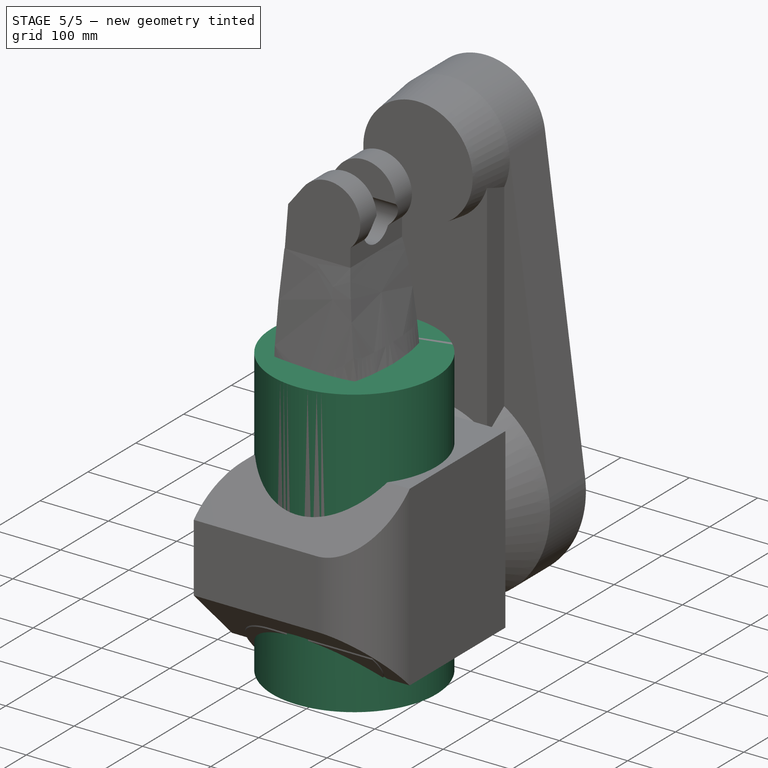
[diagram: stage 5 of 5 — iso view after this stage's code; geometry added in this stage tinted green]
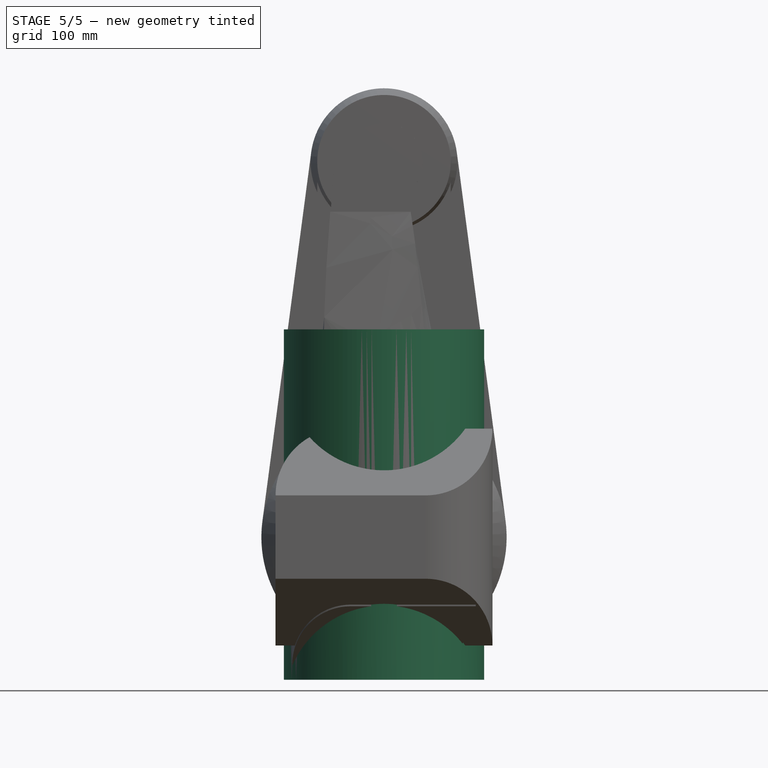
[diagram: stage 5 of 5 — front view after this stage's code; geometry added in this stage tinted green]
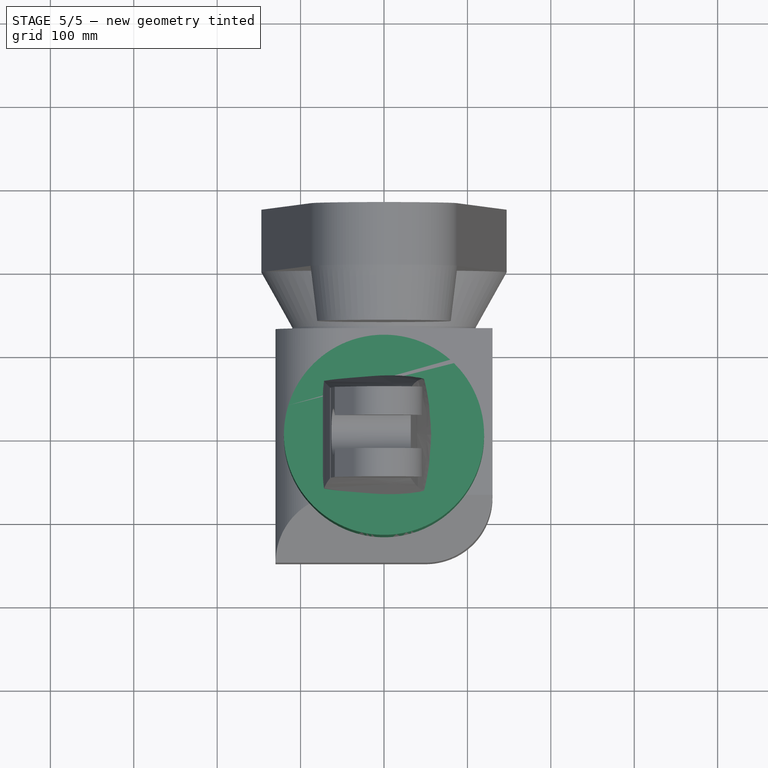
[diagram: stage 5 of 5 — top view after this stage's code; geometry added in this stage tinted green]
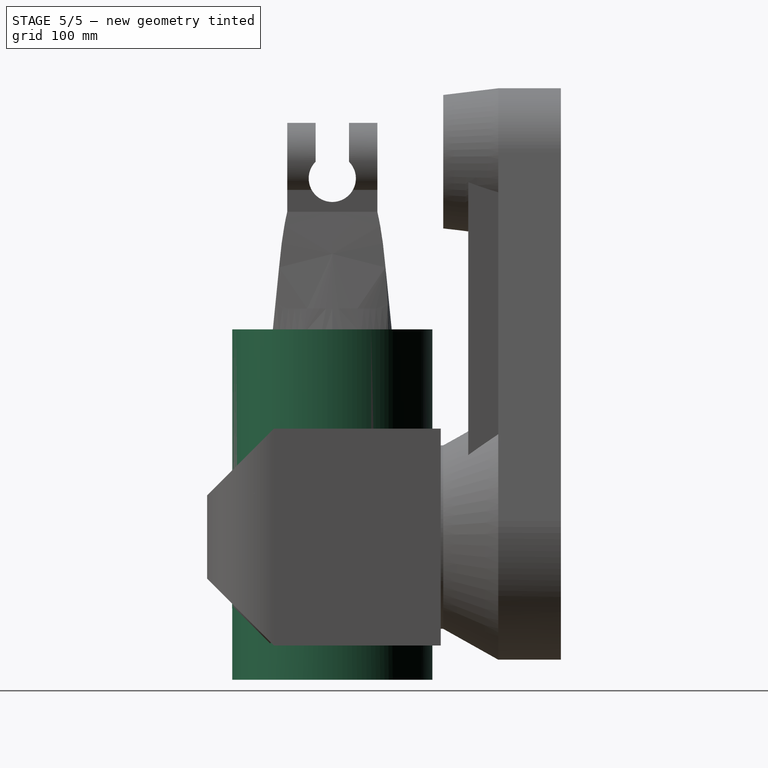
[diagram: stage 5 of 5 — right view after this stage's code; geometry added in this stage tinted green]
FEATURE [Sketcher::SketchObject] Sketch
  ArcFitTolerance = 1e-06
  AttachmentSupport = -> [XY_Plane]
  FullyConstrained = true
  MakeInternals = false
  MapMode = 5
  sketch-geometry (1):
    g0: Circle CenterX=0 CenterY=0 CenterZ=0 NormalX=0 NormalY=0 NormalZ=1 AngleXU=0 Radius=120
  constraints (2):
    c: Coincident(g0,g-1)
    c: Diameter(g0) = 240
FEATURE [PartDesign::Pad] Pad
  Direction = (0,0,1)
  Length = 249
  Length2 = 10
  Profile = -> Sketch
  ReferenceAxis = -> Sketch [N_Axis]
  Suppressed = false
  Type = 0
  expr: Length = 420 mm - 171 mm
FEATURE [PartDesign::Pad] Pad001
  BaseFeature = -> Fillet
  Direction = (0,0,1)
  Length = 171
  Length2 = 10
  Profile = -> Sketch001
  ReferenceAxis = -> Sketch001 [N_Axis]
  Reversed = true
  Suppressed = false
  Type = 0
FEATURE [PartDesign::Pad] Pad003
  BaseFeature = -> Pad001
  Direction = (0,-1,2e-16)
  Length = 10
  Length2 = 10
  Profile = -> Sketch003
  ReferenceAxis = -> Sketch003 [N_Axis]
  Suppressed = false
  Type = 3
  UpToFace = -> XZ_Plane001
FEATURE [PartDesign::Pad] Pad005
  BaseFeature = -> Fillet001
  Direction = (0,-1,2e-16)
  Length = 133
  Length2 = 10
  Profile = -> Sketch005
  ReferenceAxis = -> Sketch005 [N_Axis]
  Reversed = true
  Suppressed = false
  Type = 3
  UpToFace = -> XZ_Plane003
FEATURE [PartDesign::Pad] Pad007
  BaseFeature = -> Pad005
  Direction = (0,0,1)
  Length = 10
  Length2 = 10
  Profile = -> Sketch007
  ReferenceAxis = -> Sketch007 [N_Axis]
  Suppressed = false
  Type = 3
  UpToFace = -> XY_Plane003
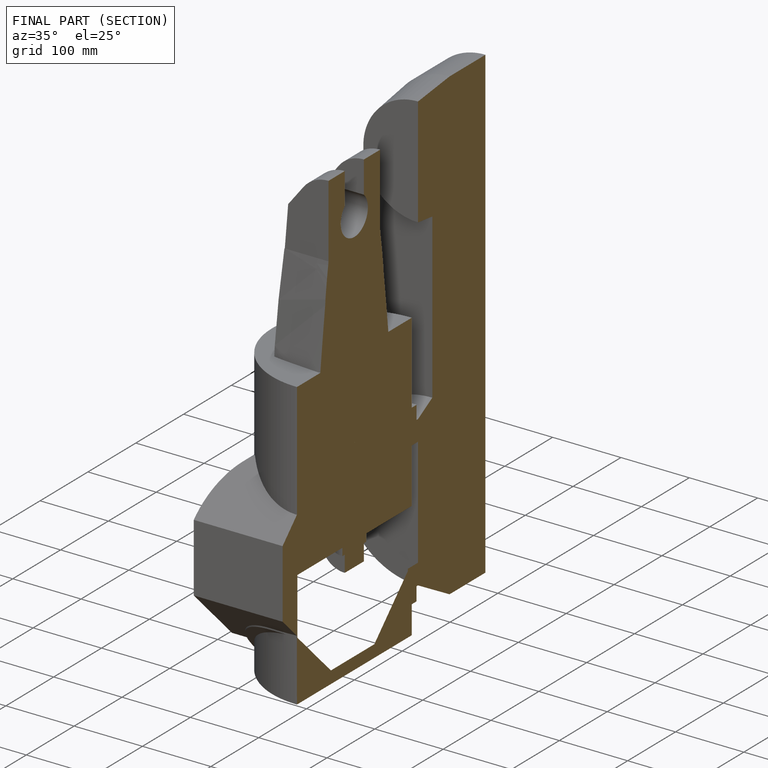
[diagram: finished part — half-section view (interior)]
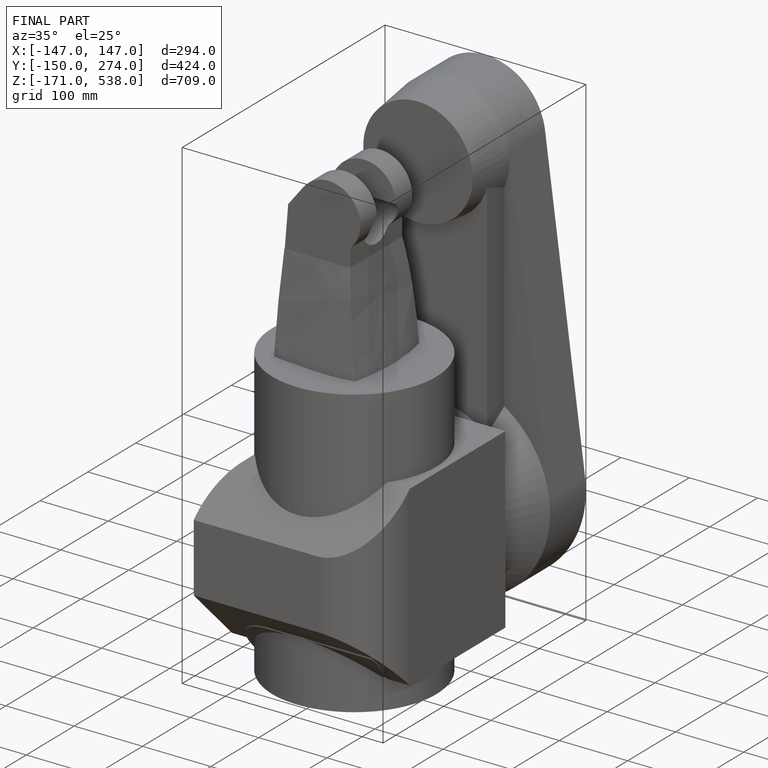
[diagram: finished part — iso view with bounding-box wireframe]
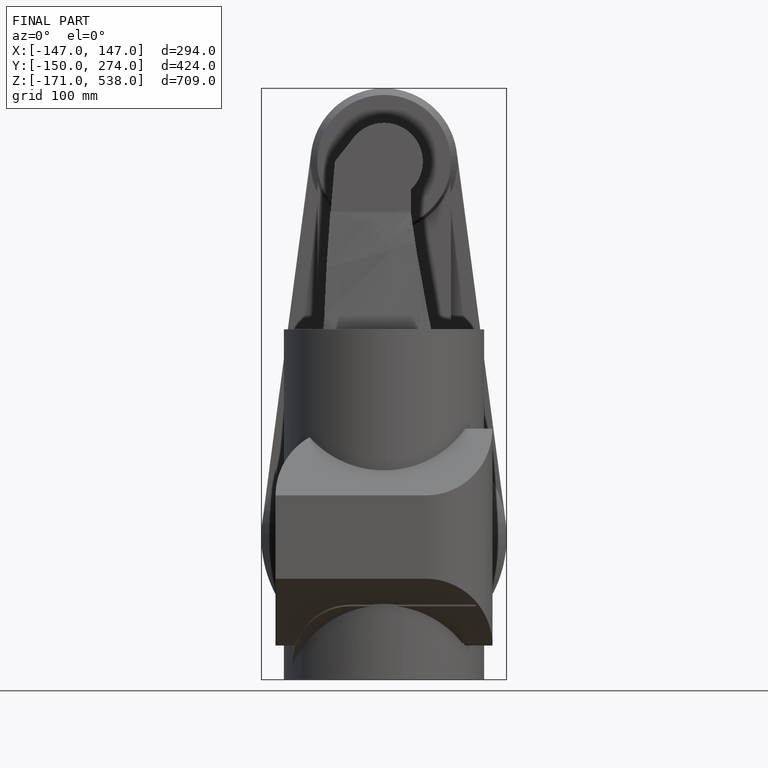
[diagram: finished part — front view with bounding-box wireframe]
